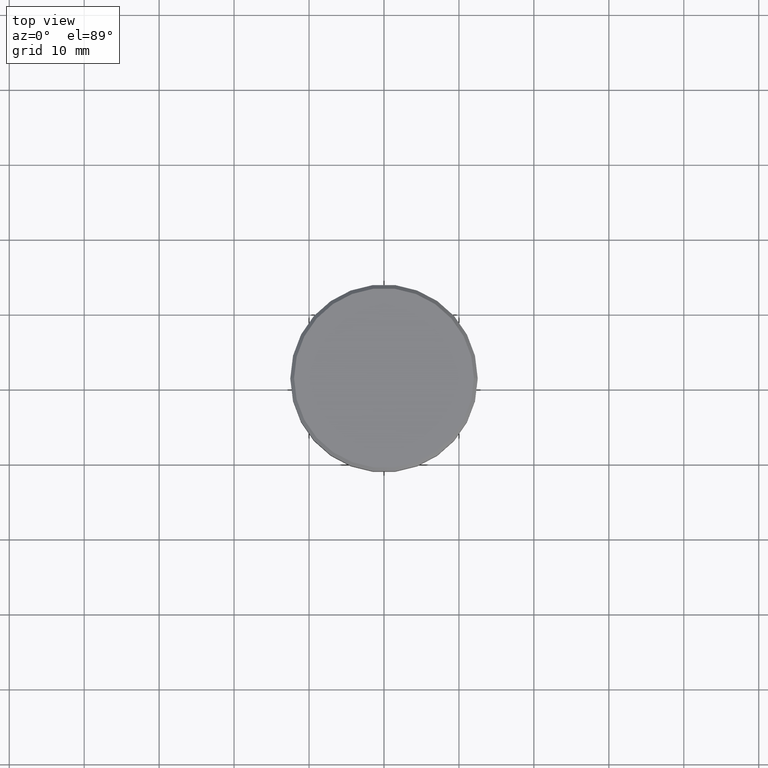
[diagram: clean part render]
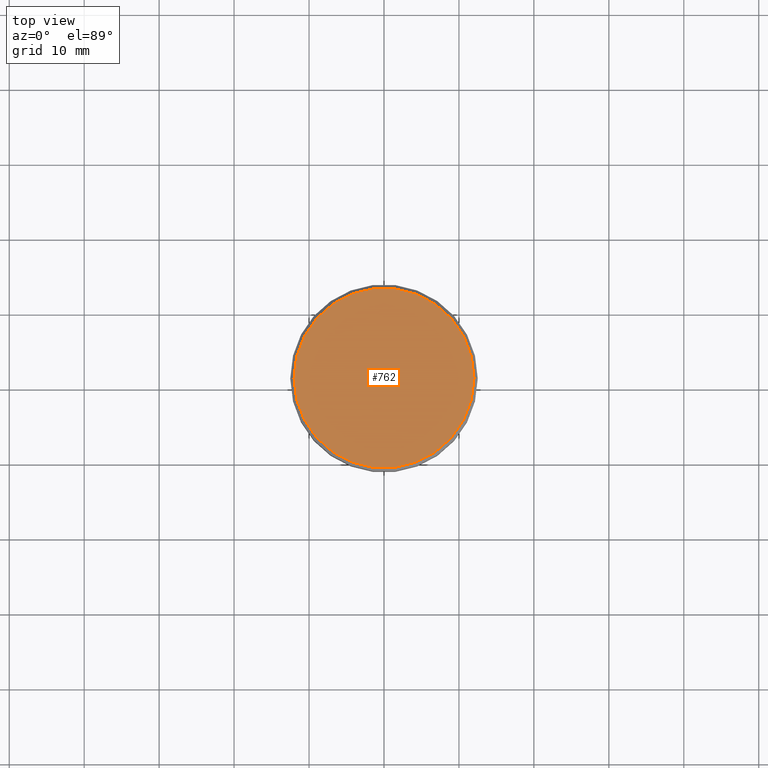
[diagram: same view with one face highlighted and labeled with its STEP entity id]
A machine part, top view. The second image highlights one B-rep face of the part: STEP entity #762.
In plain terms, the highlighted planar face has unit normal (0, -0, 1).
Its self-contained STEP definition (entity closure, byte-faithful):
#80 = VERTEX_POINT ( 'NONE', #119 ) ;
#119 = CARTESIAN_POINT ( 'NONE',  ( -11.99999999999998224, 0.000000000000000000, 0.000000000000000000 ) ) ;
#161 = AXIS2_PLACEMENT_3D ( 'NONE', #649, #823, #173 ) ;
#173 = DIRECTION ( 'NONE',  ( 1.000000000000000000, 0.000000000000000000, 0.000000000000000000 ) ) ;
#180 = DIRECTION ( 'NONE',  ( -0.000000000000000000, -0.000000000000000000, 1.000000000000000000 ) ) ;
#199 = EDGE_CURVE ( 'NONE', #80, #559, #356, .T. ) ;
#312 = AXIS2_PLACEMENT_3D ( 'NONE', #687, #691, #899 ) ;
#330 = EDGE_CURVE ( 'NONE', #559, #80, #738, .T. ) ;
#356 = CIRCLE ( 'NONE', #312, 11.99999999999998224 ) ;
#359 = DIRECTION ( 'NONE',  ( 1.000000000000000000, 0.000000000000000000, 0.000000000000000000 ) ) ;
#363 = EDGE_LOOP ( 'NONE', ( #1151, #656 ) ) ;
#559 = VERTEX_POINT ( 'NONE', #626 ) ;
#626 = CARTESIAN_POINT ( 'NONE',  ( 11.99999999999998224, 1.500192328955506354E-15, 0.000000000000000000 ) ) ;
#649 = CARTESIAN_POINT ( 'NONE',  ( 0.000000000000000000, 0.000000000000000000, 0.000000000000000000 ) ) ;
#652 = PLANE ( 'NONE',  #161 ) ;
#656 = ORIENTED_EDGE ( 'NONE', *, *, #330, .T. ) ;
#687 = CARTESIAN_POINT ( 'NONE',  ( 0.000000000000000000, 0.000000000000000000, 0.000000000000000000 ) ) ;
#691 = DIRECTION ( 'NONE',  ( -0.000000000000000000, -0.000000000000000000, 1.000000000000000000 ) ) ;
#738 = CIRCLE ( 'NONE', #882, 11.99999999999998224 ) ;
#762 = ADVANCED_FACE ( 'NONE', ( #766 ), #652, .T. ) ;
#766 = FACE_OUTER_BOUND ( 'NONE', #363, .T. ) ;
#822 = CARTESIAN_POINT ( 'NONE',  ( 0.000000000000000000, 0.000000000000000000, 0.000000000000000000 ) ) ;
#823 = DIRECTION ( 'NONE',  ( 0.000000000000000000, -0.000000000000000000, 1.000000000000000000 ) ) ;
#882 = AXIS2_PLACEMENT_3D ( 'NONE', #822, #180, #359 ) ;
#899 = DIRECTION ( 'NONE',  ( 1.000000000000000000, 0.000000000000000000, 0.000000000000000000 ) ) ;
#1151 = ORIENTED_EDGE ( 'NONE', *, *, #199, .T. ) ;